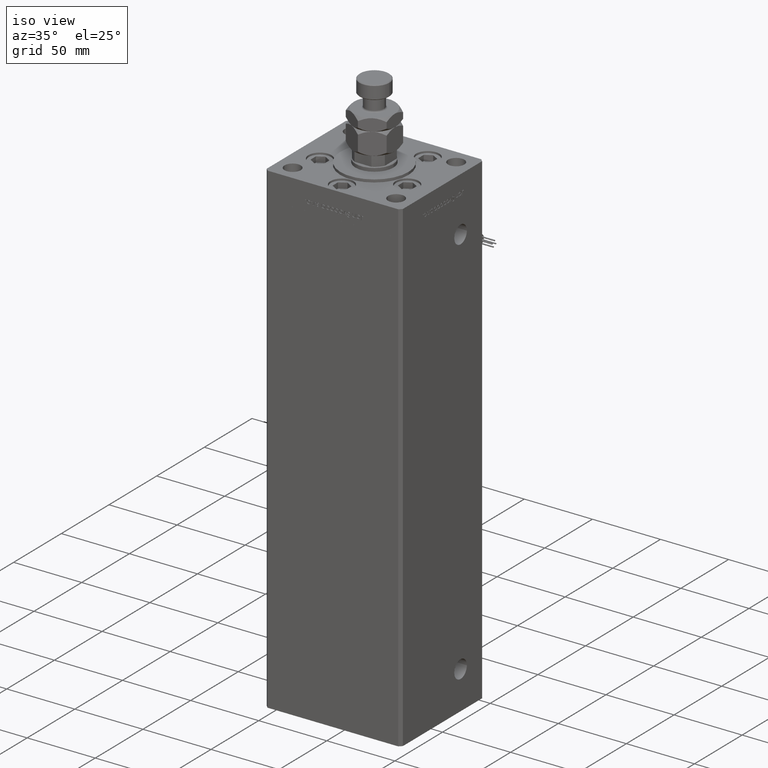
[diagram: clean part render]
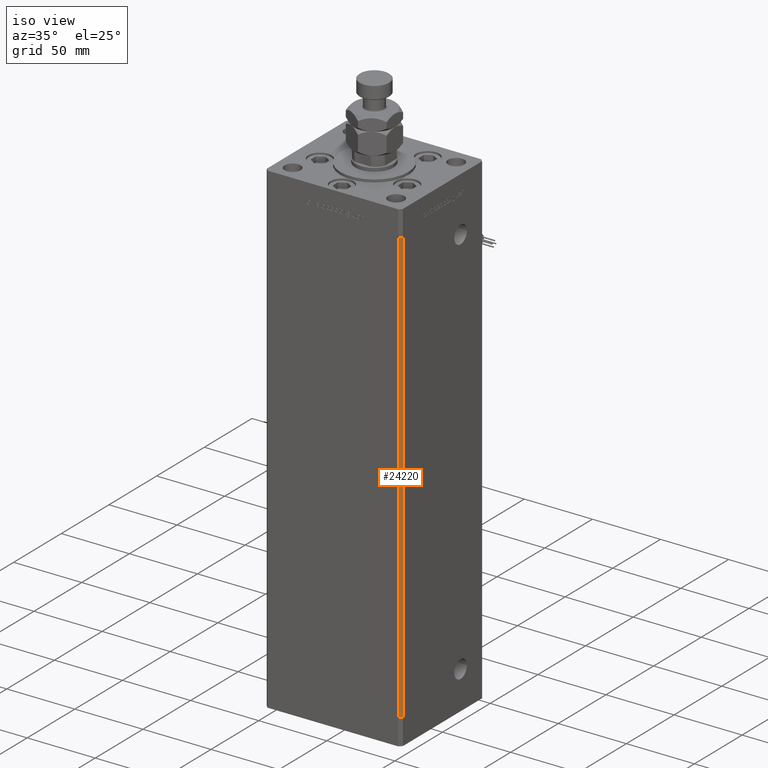
[diagram: same view with one face highlighted and labeled with its STEP entity id]
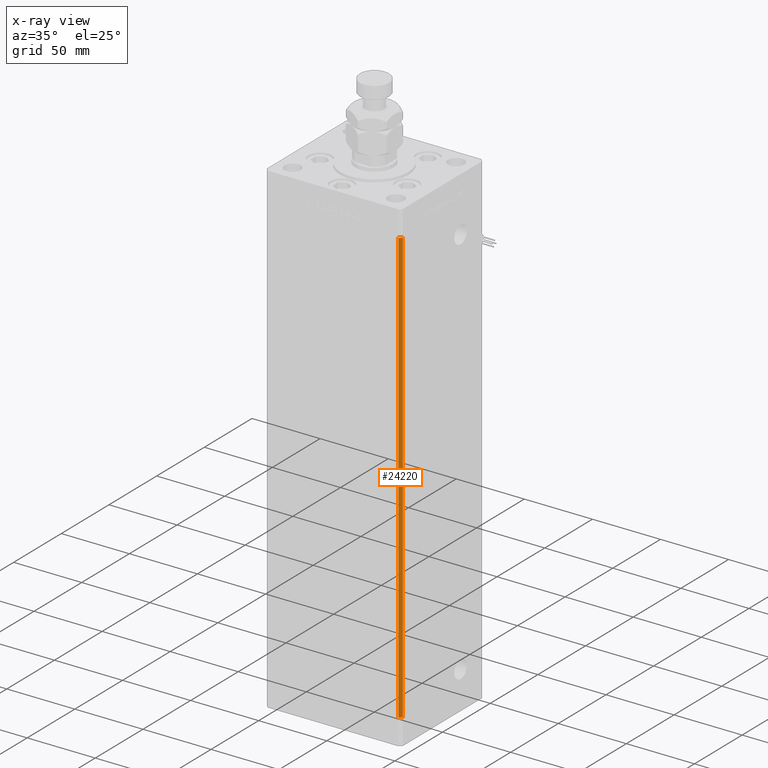
[diagram: x-ray of the same camera — body ghosted, the highlighted face saturated]
A machine part, iso view. The second image highlights one B-rep face of the part: STEP entity #24220.
The next image is the same camera in x-ray: the body ghosted, the highlighted face saturated — about 0% of this face is hidden behind the body in this view.
In plain terms, the highlighted planar face has unit normal (0.7071, -0.7071, 0).
Its self-contained STEP definition (entity closure, byte-faithful):
#3513 = CARTESIAN_POINT ( 'NONE',  ( 49.99999999999998579, -41.49999999999999289, 0.000000000000000000 ) ) ;
#3685 = VECTOR ( 'NONE', #42676, 1000.000000000000114 ) ;
#4176 = FACE_OUTER_BOUND ( 'NONE', #18303, .T. ) ;
#5808 = VECTOR ( 'NONE', #39674, 1000.000000000000114 ) ;
#8404 = LINE ( 'NONE', #9262, #39269 ) ;
#9262 = CARTESIAN_POINT ( 'NONE',  ( 47.99999999999998579, -43.50000000000000000, 318.5000000000000000 ) ) ;
#12112 = CARTESIAN_POINT ( 'NONE',  ( 47.99999999999998579, -43.50000000000000000, 0.000000000000000000 ) ) ;
#12368 = CARTESIAN_POINT ( 'NONE',  ( 49.99999999999998579, -41.49999999999999289, 318.5000000000000000 ) ) ;
#15428 = CARTESIAN_POINT ( 'NONE',  ( 47.99999999999998579, -43.50000000000000000, 318.5000000000000000 ) ) ;
#18303 = EDGE_LOOP ( 'NONE', ( #49345, #29962, #51925, #45565 ) ) ;
#19811 = EDGE_CURVE ( 'NONE', #54688, #37553, #28487, .T. ) ;
#21156 = DIRECTION ( 'NONE',  ( -0.000000000000000000, -0.000000000000000000, -1.000000000000000000 ) ) ;
#21433 = AXIS2_PLACEMENT_3D ( 'NONE', #21724, #39282, #56813 ) ;
#21724 = CARTESIAN_POINT ( 'NONE',  ( 49.99999999999998579, -41.49999999999999289, 318.5000000000000000 ) ) ;
#24220 = ADVANCED_FACE ( 'NONE', ( #4176 ), #47342, .T. ) ;
#24622 = CARTESIAN_POINT ( 'NONE',  ( 49.99999999999998579, -41.49999999999999289, 318.5000000000000000 ) ) ;
#25123 = CARTESIAN_POINT ( 'NONE',  ( 49.99999999999998579, -41.49999999999999289, 0.000000000000000000 ) ) ;
#26641 = EDGE_CURVE ( 'NONE', #54688, #54388, #51359, .T. ) ;
#28487 = LINE ( 'NONE', #51770, #5808 ) ;
#29431 = LINE ( 'NONE', #25123, #3685 ) ;
#29962 = ORIENTED_EDGE ( 'NONE', *, *, #26641, .F. ) ;
#32256 = VERTEX_POINT ( 'NONE', #12112 ) ;
#37553 = VERTEX_POINT ( 'NONE', #15428 ) ;
#38062 = VECTOR ( 'NONE', #21156, 1000.000000000000000 ) ;
#39185 = DIRECTION ( 'NONE',  ( -0.000000000000000000, -0.000000000000000000, -1.000000000000000000 ) ) ;
#39269 = VECTOR ( 'NONE', #39185, 1000.000000000000000 ) ;
#39282 = DIRECTION ( 'NONE',  ( 0.7071067811865475727, -0.7071067811865475727, 0.000000000000000000 ) ) ;
#39674 = DIRECTION ( 'NONE',  ( -0.7071067811865474617, -0.7071067811865474617, 0.000000000000000000 ) ) ;
#42676 = DIRECTION ( 'NONE',  ( -0.7071067811865474617, -0.7071067811865474617, 0.000000000000000000 ) ) ;
#45565 = ORIENTED_EDGE ( 'NONE', *, *, #46167, .T. ) ;
#46167 = EDGE_CURVE ( 'NONE', #37553, #32256, #8404, .T. ) ;
#47342 = PLANE ( 'NONE',  #21433 ) ;
#49345 = ORIENTED_EDGE ( 'NONE', *, *, #56159, .F. ) ;
#51359 = LINE ( 'NONE', #24622, #38062 ) ;
#51770 = CARTESIAN_POINT ( 'NONE',  ( 49.99999999999998579, -41.49999999999999289, 318.5000000000000000 ) ) ;
#51925 = ORIENTED_EDGE ( 'NONE', *, *, #19811, .T. ) ;
#54388 = VERTEX_POINT ( 'NONE', #3513 ) ;
#54688 = VERTEX_POINT ( 'NONE', #12368 ) ;
#56159 = EDGE_CURVE ( 'NONE', #54388, #32256, #29431, .T. ) ;
#56813 = DIRECTION ( 'NONE',  ( 0.7071067811865474617, 0.7071067811865474617, 0.000000000000000000 ) ) ;